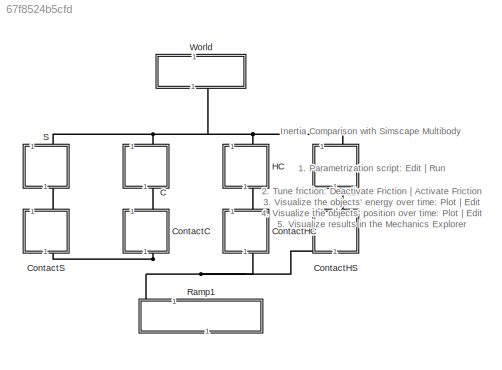
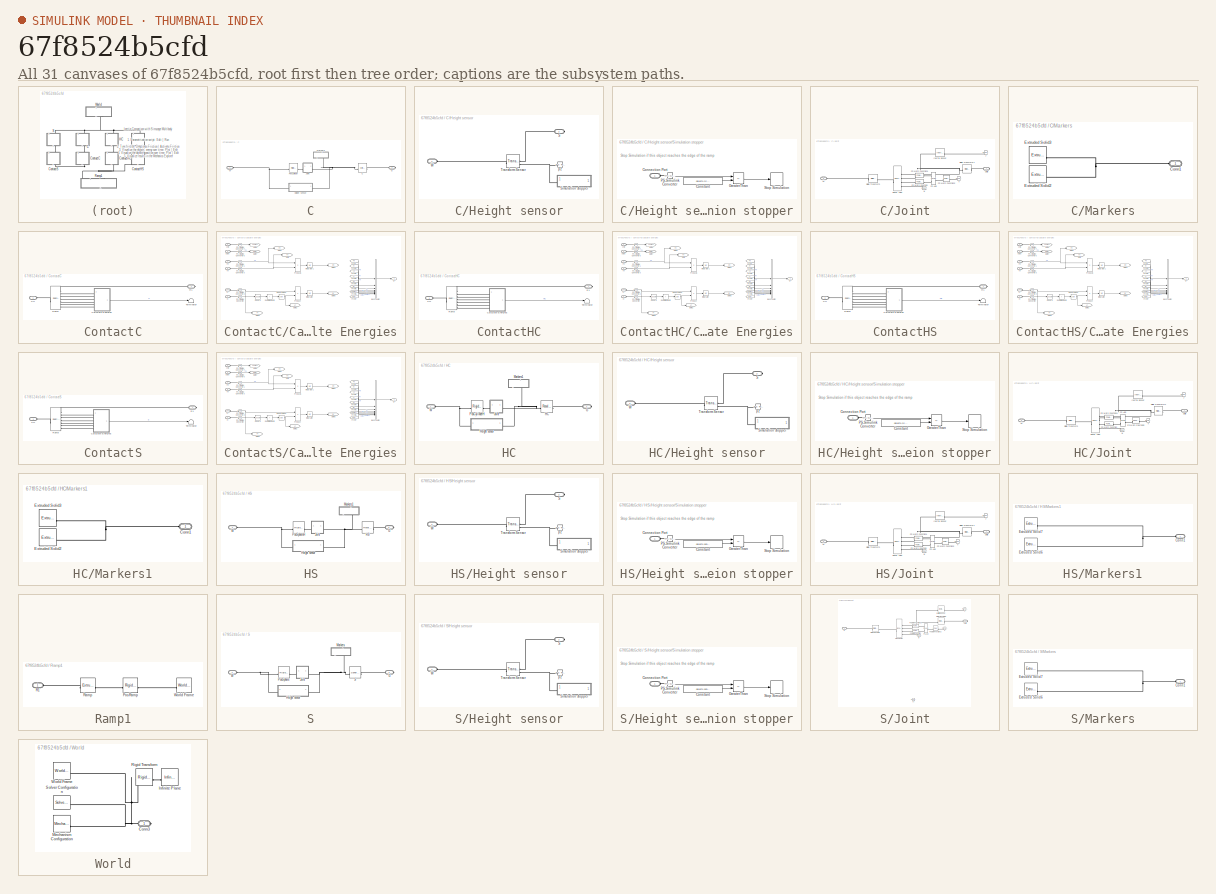
[diagram: thumbnail index - all 31 canvases of the model, root first then tree order]
MODEL slx_67f8524b5cfd
KIND model
CONFIG AbsTol = 1e-3
CONFIG EnableMultiTasking = on
CONFIG FixedStep = 1e-3
CONFIG MaxStep = 0.01
CONFIG MinStep = auto
CONFIG PreLoadFcn = simpleInertiaModelParam
CONFIG RelTol = 1e-3
CONFIG SampleTimeConstraint = Unconstrained
CONFIG SolverName = ode23t
CONFIG StartTime = 0.0
CONFIG StopTime = 10
BLOCK [SubSystem] C
  NameLocation = left
BLOCK [Reference] C/C  REF=sm_lib/Body Elements/Cylindrical Solid
  SourceBlock = sm_lib/Body Elements/Cylindrical Solid
  SourceType = Cylindrical Solid
BLOCK [PMIOPort] C/G
  Port = 2
  Side = Right
BLOCK [SubSystem] C/Height sensor
BLOCK [PMIOPort] C/Height sensor/S
  Port = 2
  Side = Right
BLOCK [SubSystem] C/Height sensor/Simulation stopper
BLOCK [PMIOPort] C/Height sensor/Simulation stopper/Connection Port
  Side = Left
BLOCK [Constant] C/Height sensor/Simulation stopper/Constant
  Value = objects.cylindRad
BLOCK [RelationalOperator] C/Height sensor/Simulation stopper/GreaterThan
  InputSameDT = off
  Operator = <=
  OutDataTypeStr = boolean
  RndMeth = Simplest
BLOCK [Reference] C/Height sensor/Simulation stopper/PS-Simulink Converter  REF=nesl_utility/PS-Simulink
Converter
  SourceBlock = nesl_utility/PS-Simulink\nConverter
  SourceType = PS-Simulink\nConverter
BLOCK [Stop] C/Height sensor/Simulation stopper/Stop Simulation
BLOCK [Reference] C/Height sensor/Transform Sensor  REF=sm_lib/Frames and
Transforms/Transform
Sensor
  SourceBlock = sm_lib/Frames and\nTransforms/Transform\nSensor
  SourceType = Transform\nSensor
BLOCK [PMIOPort] C/Height sensor/W
  Side = Left
BLOCK [Reference] C/Height sensor/pz  REF=fl_lib/Physical Signals/Sinks/PS Terminator
  NameLocation = right
  SourceBlock = fl_lib/Physical Signals/Sinks/PS Terminator
  SourceType = PS Terminator
BLOCK [SubSystem] C/Joint
BLOCK [Reference] C/Joint/Inertia Sensor  REF=sm_lib/Body Elements/Inertia Sensor
  SourceBlock = sm_lib/Body Elements/Inertia Sensor
  SourceType = Inertia Sensor
BLOCK [Reference] C/Joint/J  REF=fl_lib/Physical Signals/Sinks/PS Terminator
  NameLocation = right
  SourceBlock = fl_lib/Physical Signals/Sinks/PS Terminator
  SourceType = PS Terminator
BLOCK [Reference] C/Joint/PS Add  REF=fl_lib/Physical Signals/Functions/PS Add
  SourceBlock = fl_lib/Physical Signals/Functions/PS Add
  SourceType = PS Add
BLOCK [Reference] C/Joint/PS Math Function  REF=fl_lib/Physical Signals/Functions/PS Math Function
  SourceBlock = fl_lib/Physical Signals/Functions/PS Math Function
  SourceType = PS Math Function
BLOCK [Reference] C/Joint/PS Math Function1  REF=fl_lib/Physical Signals/Functions/PS Math Function
  SourceBlock = fl_lib/Physical Signals/Functions/PS Math Function
  SourceType = PS Math Function
BLOCK [Reference] C/Joint/PS Math Function2  REF=fl_lib/Physical Signals/Functions/PS Math Function
  SourceBlock = fl_lib/Physical Signals/Functions/PS Math Function
  SourceType = PS Math Function
BLOCK [Reference] C/Joint/Planar Joint  REF=sm_lib/Joints/Planar Joint
  SourceBlock = sm_lib/Joints/Planar Joint
  SourceType = Planar Joint
BLOCK [Reference] C/Joint/Rigid Transform  REF=sm_lib/Frames and
Transforms/Rigid
Transform
  SourceBlock = sm_lib/Frames and\nTransforms/Rigid\nTransform
  SourceType = Rigid\nTransform
BLOCK [Reference] C/Joint/Rigid Transform1  REF=sm_lib/Frames and
Transforms/Rigid
Transform
  SourceBlock = sm_lib/Frames and\nTransforms/Rigid\nTransform
  SourceType = Rigid\nTransform
BLOCK [PMIOPort] C/Joint/Solid
  Side = Right
BLOCK [PMIOPort] C/Joint/W
  Port = 2
  Side = Left
BLOCK [Reference] C/Joint/v  REF=fl_lib/Physical Signals/Sinks/PS Terminator
  NameLocation = right
  SourceBlock = fl_lib/Physical Signals/Sinks/PS Terminator
  SourceType = PS Terminator
BLOCK [Reference] C/Joint/w  REF=fl_lib/Physical Signals/Sinks/PS Terminator
  NameLocation = right
  SourceBlock = fl_lib/Physical Signals/Sinks/PS Terminator
  SourceType = PS Terminator
BLOCK [SubSystem] C/Markers
  NameLocation = top
BLOCK [PMIOPort] C/Markers/Conn1
  NameLocation = top
  Side = Left
BLOCK [Reference] C/Markers/Extruded Solid2  REF=sm_lib/Body Elements/Extruded Solid
  SourceBlock = sm_lib/Body Elements/Extruded Solid
  SourceType = Extruded Solid
BLOCK [Reference] C/Markers/Extruded Solid3  REF=sm_lib/Body Elements/Extruded Solid
  NameLocation = top
  SourceBlock = sm_lib/Body Elements/Extruded Solid
  SourceType = Extruded Solid
BLOCK [Reference] C/PosCylinder  REF=sm_lib/Frames and
Transforms/Rigid
Transform
  SourceBlock = sm_lib/Frames and\nTransforms/Rigid\nTransform
  SourceType = Rigid\nTransform
BLOCK [PMIOPort] C/W
  Side = Left
BLOCK [SubSystem] ContactC
BLOCK [PMIOPort] ContactC/CH
  Side = Left
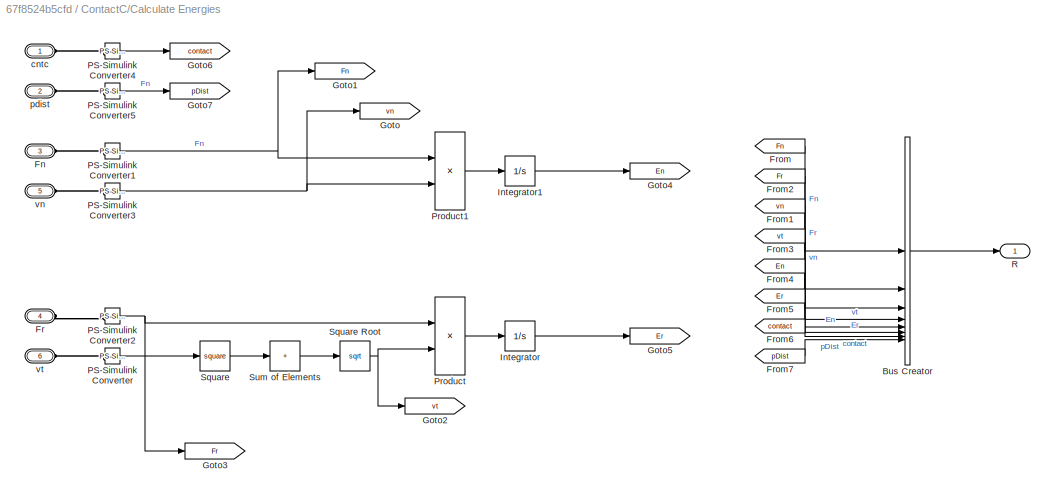
BLOCK [SubSystem] ContactC/Calculate Energies
BLOCK [BusCreator] ContactC/Calculate Energies/Bus Creator
  DisplayOption = bar
  InheritFromInputs = on
  Inputs = 8
BLOCK [PMIOPort] ContactC/Calculate Energies/Fn
  Port = 3
  Side = Left
BLOCK [PMIOPort] ContactC/Calculate Energies/Fr
  Port = 4
  Side = Left
BLOCK [From] ContactC/Calculate Energies/From
  GotoTag = Fn
BLOCK [From] ContactC/Calculate Energies/From1
  GotoTag = vn
BLOCK [From] ContactC/Calculate Energies/From2
  GotoTag = Fr
BLOCK [From] ContactC/Calculate Energies/From3
  GotoTag = vt
BLOCK [From] ContactC/Calculate Energies/From4
  GotoTag = En
BLOCK [From] ContactC/Calculate Energies/From5
  GotoTag = Er
BLOCK [From] ContactC/Calculate Energies/From6
  GotoTag = contact
BLOCK [From] ContactC/Calculate Energies/From7
  GotoTag = pDist
BLOCK [Goto] ContactC/Calculate Energies/Goto
  GotoTag = vn
BLOCK [Goto] ContactC/Calculate Energies/Goto1
  GotoTag = Fn
BLOCK [Goto] ContactC/Calculate Energies/Goto2
  GotoTag = vt
BLOCK [Goto] ContactC/Calculate Energies/Goto3
  GotoTag = Fr
BLOCK [Goto] ContactC/Calculate Energies/Goto4
  GotoTag = En
BLOCK [Goto] ContactC/Calculate Energies/Goto5
  GotoTag = Er
BLOCK [Goto] ContactC/Calculate Energies/Goto6
  GotoTag = contact
BLOCK [Goto] ContactC/Calculate Energies/Goto7
  GotoTag = pDist
BLOCK [Integrator] ContactC/Calculate Energies/Integrator
BLOCK [Integrator] ContactC/Calculate Energies/Integrator1
BLOCK [Reference] ContactC/Calculate Energies/PS-Simulink Converter  REF=nesl_utility/PS-Simulink
Converter
  SourceBlock = nesl_utility/PS-Simulink\nConverter
  SourceType = PS-Simulink\nConverter
BLOCK [Reference] ContactC/Calculate Energies/PS-Simulink Converter1  REF=nesl_utility/PS-Simulink
Converter
  SourceBlock = nesl_utility/PS-Simulink\nConverter
  SourceType = PS-Simulink\nConverter
BLOCK [Reference] ContactC/Calculate Energies/PS-Simulink Converter2  REF=nesl_utility/PS-Simulink
Converter
  SourceBlock = nesl_utility/PS-Simulink\nConverter
  SourceType = PS-Simulink\nConverter
BLOCK [Reference] ContactC/Calculate Energies/PS-Simulink Converter3  REF=nesl_utility/PS-Simulink
Converter
  SourceBlock = nesl_utility/PS-Simulink\nConverter
  SourceType = PS-Simulink\nConverter
BLOCK [Reference] ContactC/Calculate Energies/PS-Simulink Converter4  REF=nesl_utility/PS-Simulink
Converter
  SourceBlock = nesl_utility/PS-Simulink\nConverter
  SourceType = PS-Simulink\nConverter
BLOCK [Reference] ContactC/Calculate Energies/PS-Simulink Converter5  REF=nesl_utility/PS-Simulink
Converter
  SourceBlock = nesl_utility/PS-Simulink\nConverter
  SourceType = PS-Simulink\nConverter
BLOCK [Product] ContactC/Calculate Energies/Product
BLOCK [Product] ContactC/Calculate Energies/Product1
BLOCK [Outport] ContactC/Calculate Energies/R
BLOCK [Math] ContactC/Calculate Energies/Square
  Operator = square
BLOCK [Sqrt] ContactC/Calculate Energies/Square Root
BLOCK [Sum] ContactC/Calculate Energies/Sum of Elements
  IconShape = rectangular
  Inputs = +
BLOCK [PMIOPort] ContactC/Calculate Energies/cntc
  Side = Left
BLOCK [PMIOPort] ContactC/Calculate Energies/pdist
  Port = 2
  Side = Left
BLOCK [PMIOPort] ContactC/Calculate Energies/vn
  Port = 5
  Side = Left
BLOCK [PMIOPort] ContactC/Calculate Energies/vt
  Port = 6
  Side = Left
BLOCK [PMIOPort] ContactC/R1
  NameLocation = top
  Port = 2
  Side = Right
BLOCK [Reference] ContactC/Ramp  REF=sm_lib/Forces and
Torques/Spatial
Contact Force
  SourceBlock = sm_lib/Forces and\nTorques/Spatial\nContact Force
  SourceType = Spatial\nContact Force
BLOCK [Terminator] ContactC/Terminator
BLOCK [SubSystem] ContactHC
BLOCK [PMIOPort] ContactHC/CH
  Side = Left
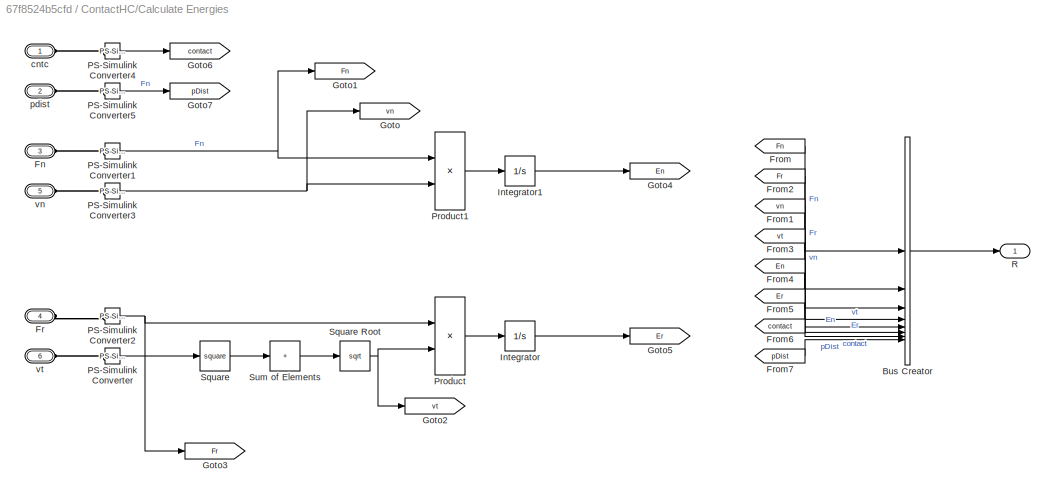
BLOCK [SubSystem] ContactHC/Calculate Energies
BLOCK [BusCreator] ContactHC/Calculate Energies/Bus Creator
  DisplayOption = bar
  InheritFromInputs = on
  Inputs = 8
BLOCK [PMIOPort] ContactHC/Calculate Energies/Fn
  Port = 3
  Side = Left
BLOCK [PMIOPort] ContactHC/Calculate Energies/Fr
  Port = 4
  Side = Left
BLOCK [From] ContactHC/Calculate Energies/From
  GotoTag = Fn
BLOCK [From] ContactHC/Calculate Energies/From1
  GotoTag = vn
BLOCK [From] ContactHC/Calculate Energies/From2
  GotoTag = Fr
BLOCK [From] ContactHC/Calculate Energies/From3
  GotoTag = vt
BLOCK [From] ContactHC/Calculate Energies/From4
  GotoTag = En
BLOCK [From] ContactHC/Calculate Energies/From5
  GotoTag = Er
BLOCK [From] ContactHC/Calculate Energies/From6
  GotoTag = contact
BLOCK [From] ContactHC/Calculate Energies/From7
  GotoTag = pDist
BLOCK [Goto] ContactHC/Calculate Energies/Goto
  GotoTag = vn
BLOCK [Goto] ContactHC/Calculate Energies/Goto1
  GotoTag = Fn
BLOCK [Goto] ContactHC/Calculate Energies/Goto2
  GotoTag = vt
BLOCK [Goto] ContactHC/Calculate Energies/Goto3
  GotoTag = Fr
BLOCK [Goto] ContactHC/Calculate Energies/Goto4
  GotoTag = En
BLOCK [Goto] ContactHC/Calculate Energies/Goto5
  GotoTag = Er
BLOCK [Goto] ContactHC/Calculate Energies/Goto6
  GotoTag = contact
BLOCK [Goto] ContactHC/Calculate Energies/Goto7
  GotoTag = pDist
BLOCK [Integrator] ContactHC/Calculate Energies/Integrator
BLOCK [Integrator] ContactHC/Calculate Energies/Integrator1
BLOCK [Reference] ContactHC/Calculate Energies/PS-Simulink Converter  REF=nesl_utility/PS-Simulink
Converter
  SourceBlock = nesl_utility/PS-Simulink\nConverter
  SourceType = PS-Simulink\nConverter
BLOCK [Reference] ContactHC/Calculate Energies/PS-Simulink Converter1  REF=nesl_utility/PS-Simulink
Converter
  SourceBlock = nesl_utility/PS-Simulink\nConverter
  SourceType = PS-Simulink\nConverter
BLOCK [Reference] ContactHC/Calculate Energies/PS-Simulink Converter2  REF=nesl_utility/PS-Simulink
Converter
  SourceBlock = nesl_utility/PS-Simulink\nConverter
  SourceType = PS-Simulink\nConverter
BLOCK [Reference] ContactHC/Calculate Energies/PS-Simulink Converter3  REF=nesl_utility/PS-Simulink
Converter
  SourceBlock = nesl_utility/PS-Simulink\nConverter
  SourceType = PS-Simulink\nConverter
BLOCK [Reference] ContactHC/Calculate Energies/PS-Simulink Converter4  REF=nesl_utility/PS-Simulink
Converter
  SourceBlock = nesl_utility/PS-Simulink\nConverter
  SourceType = PS-Simulink\nConverter
BLOCK [Reference] ContactHC/Calculate Energies/PS-Simulink Converter5  REF=nesl_utility/PS-Simulink
Converter
  SourceBlock = nesl_utility/PS-Simulink\nConverter
  SourceType = PS-Simulink\nConverter
BLOCK [Product] ContactHC/Calculate Energies/Product
BLOCK [Product] ContactHC/Calculate Energies/Product1
BLOCK [Outport] ContactHC/Calculate Energies/R
BLOCK [Math] ContactHC/Calculate Energies/Square
  Operator = square
BLOCK [Sqrt] ContactHC/Calculate Energies/Square Root
BLOCK [Sum] ContactHC/Calculate Energies/Sum of Elements
  IconShape = rectangular
  Inputs = +
BLOCK [PMIOPort] ContactHC/Calculate Energies/cntc
  Side = Left
BLOCK [PMIOPort] ContactHC/Calculate Energies/pdist
  Port = 2
  Side = Left
BLOCK [PMIOPort] ContactHC/Calculate Energies/vn
  Port = 5
  Side = Left
BLOCK [PMIOPort] ContactHC/Calculate Energies/vt
  Port = 6
  Side = Left
BLOCK [PMIOPort] ContactHC/R1
  NameLocation = top
  Port = 2
  Side = Right
BLOCK [Reference] ContactHC/Ramp  REF=sm_lib/Forces and
Torques/Spatial
Contact Force
  SourceBlock = sm_lib/Forces and\nTorques/Spatial\nContact Force
  SourceType = Spatial\nContact Force
BLOCK [Terminator] ContactHC/Terminator
BLOCK [SubSystem] ContactHS
BLOCK [PMIOPort] ContactHS/CH
  Side = Left
BLOCK [SubSystem] ContactHS/Calculate Energies
BLOCK [BusCreator] ContactHS/Calculate Energies/Bus Creator
  DisplayOption = bar
  InheritFromInputs = on
  Inputs = 8
BLOCK [PMIOPort] ContactHS/Calculate Energies/Fn
  Port = 3
  Side = Left
BLOCK [PMIOPort] ContactHS/Calculate Energies/Fr
  Port = 4
  Side = Left
BLOCK [From] ContactHS/Calculate Energies/From
  GotoTag = Fn
BLOCK [From] ContactHS/Calculate Energies/From1
  GotoTag = vn
BLOCK [From] ContactHS/Calculate Energies/From2
  GotoTag = Fr
BLOCK [From] ContactHS/Calculate Energies/From3
  GotoTag = vt
BLOCK [From] ContactHS/Calculate Energies/From4
  GotoTag = En
BLOCK [From] ContactHS/Calculate Energies/From5
  GotoTag = Er
BLOCK [From] ContactHS/Calculate Energies/From6
  GotoTag = contact
BLOCK [From] ContactHS/Calculate Energies/From7
  GotoTag = pDist
BLOCK [Goto] ContactHS/Calculate Energies/Goto
  GotoTag = vn
BLOCK [Goto] ContactHS/Calculate Energies/Goto1
  GotoTag = Fn
BLOCK [Goto] ContactHS/Calculate Energies/Goto2
  GotoTag = vt
BLOCK [Goto] ContactHS/Calculate Energies/Goto3
  GotoTag = Fr
BLOCK [Goto] ContactHS/Calculate Energies/Goto4
  GotoTag = En
BLOCK [Goto] ContactHS/Calculate Energies/Goto5
  GotoTag = Er
BLOCK [Goto] ContactHS/Calculate Energies/Goto6
  GotoTag = contact
BLOCK [Goto] ContactHS/Calculate Energies/Goto7
  GotoTag = pDist
BLOCK [Integrator] ContactHS/Calculate Energies/Integrator
BLOCK [Integrator] ContactHS/Calculate Energies/Integrator1
BLOCK [Reference] ContactHS/Calculate Energies/PS-Simulink Converter  REF=nesl_utility/PS-Simulink
Converter
  SourceBlock = nesl_utility/PS-Simulink\nConverter
  SourceType = PS-Simulink\nConverter
BLOCK [Reference] ContactHS/Calculate Energies/PS-Simulink Converter1  REF=nesl_utility/PS-Simulink
Converter
  SourceBlock = nesl_utility/PS-Simulink\nConverter
  SourceType = PS-Simulink\nConverter
BLOCK [Reference] ContactHS/Calculate Energies/PS-Simulink Converter2  REF=nesl_utility/PS-Simulink
Converter
  SourceBlock = nesl_utility/PS-Simulink\nConverter
  SourceType = PS-Simulink\nConverter
BLOCK [Reference] ContactHS/Calculate Energies/PS-Simulink Converter3  REF=nesl_utility/PS-Simulink
Converter
  SourceBlock = nesl_utility/PS-Simulink\nConverter
  SourceType = PS-Simulink\nConverter
BLOCK [Reference] ContactHS/Calculate Energies/PS-Simulink Converter4  REF=nesl_utility/PS-Simulink
Converter
  SourceBlock = nesl_utility/PS-Simulink\nConverter
  SourceType = PS-Simulink\nConverter
BLOCK [Reference] ContactHS/Calculate Energies/PS-Simulink Converter5  REF=nesl_utility/PS-Simulink
Converter
  SourceBlock = nesl_utility/PS-Simulink\nConverter
  SourceType = PS-Simulink\nConverter
BLOCK [Product] ContactHS/Calculate Energies/Product
BLOCK [Product] ContactHS/Calculate Energies/Product1
BLOCK [Outport] ContactHS/Calculate Energies/R
BLOCK [Math] ContactHS/Calculate Energies/Square
  Operator = square
BLOCK [Sqrt] ContactHS/Calculate Energies/Square Root
BLOCK [Sum] ContactHS/Calculate Energies/Sum of Elements
  IconShape = rectangular
  Inputs = +
BLOCK [PMIOPort] ContactHS/Calculate Energies/cntc
  Side = Left
BLOCK [PMIOPort] ContactHS/Calculate Energies/pdist
  Port = 2
  Side = Left
BLOCK [PMIOPort] ContactHS/Calculate Energies/vn
  Port = 5
  Side = Left
BLOCK [PMIOPort] ContactHS/Calculate Energies/vt
  Port = 6
  Side = Left
BLOCK [PMIOPort] ContactHS/R1
  NameLocation = top
  Port = 2
  Side = Right
BLOCK [Reference] ContactHS/Ramp  REF=sm_lib/Forces and
Torques/Spatial
Contact Force
  SourceBlock = sm_lib/Forces and\nTorques/Spatial\nContact Force
  SourceType = Spatial\nContact Force
BLOCK [Terminator] ContactHS/Terminator
BLOCK [SubSystem] ContactS
BLOCK [PMIOPort] ContactS/CH
  Side = Left
BLOCK [SubSystem] ContactS/Calculate Energies
BLOCK [BusCreator] ContactS/Calculate Energies/Bus Creator
  DisplayOption = bar
  InheritFromInputs = on
  Inputs = 8
BLOCK [PMIOPort] ContactS/Calculate Energies/Fn
  Port = 3
  Side = Left
BLOCK [PMIOPort] ContactS/Calculate Energies/Fr
  Port = 4
  Side = Left
BLOCK [From] ContactS/Calculate Energies/From
  GotoTag = Fn
BLOCK [From] ContactS/Calculate Energies/From1
  GotoTag = vn
BLOCK [From] ContactS/Calculate Energies/From2
  GotoTag = Fr
BLOCK [From] ContactS/Calculate Energies/From3
  GotoTag = vt
BLOCK [From] ContactS/Calculate Energies/From4
  GotoTag = En
BLOCK [From] ContactS/Calculate Energies/From5
  GotoTag = Er
BLOCK [From] ContactS/Calculate Energies/From6
  GotoTag = contact
BLOCK [From] ContactS/Calculate Energies/From7
  GotoTag = pDist
BLOCK [Goto] ContactS/Calculate Energies/Goto
  GotoTag = vn
BLOCK [Goto] ContactS/Calculate Energies/Goto1
  GotoTag = Fn
BLOCK [Goto] ContactS/Calculate Energies/Goto2
  GotoTag = vt
BLOCK [Goto] ContactS/Calculate Energies/Goto3
  GotoTag = Fr
BLOCK [Goto] ContactS/Calculate Energies/Goto4
  GotoTag = En
BLOCK [Goto] ContactS/Calculate Energies/Goto5
  GotoTag = Er
BLOCK [Goto] ContactS/Calculate Energies/Goto6
  GotoTag = contact
BLOCK [Goto] ContactS/Calculate Energies/Goto7
  GotoTag = pDist
BLOCK [Integrator] ContactS/Calculate Energies/Integrator
BLOCK [Integrator] ContactS/Calculate Energies/Integrator1
BLOCK [Reference] ContactS/Calculate Energies/PS-Simulink Converter  REF=nesl_utility/PS-Simulink
Converter
  SourceBlock = nesl_utility/PS-Simulink\nConverter
  SourceType = PS-Simulink\nConverter
BLOCK [Reference] ContactS/Calculate Energies/PS-Simulink Converter1  REF=nesl_utility/PS-Simulink
Converter
  SourceBlock = nesl_utility/PS-Simulink\nConverter
  SourceType = PS-Simulink\nConverter
BLOCK [Reference] ContactS/Calculate Energies/PS-Simulink Converter2  REF=nesl_utility/PS-Simulink
Converter
  SourceBlock = nesl_utility/PS-Simulink\nConverter
  SourceType = PS-Simulink\nConverter
BLOCK [Reference] ContactS/Calculate Energies/PS-Simulink Converter3  REF=nesl_utility/PS-Simulink
Converter
  SourceBlock = nesl_utility/PS-Simulink\nConverter
  SourceType = PS-Simulink\nConverter
BLOCK [Reference] ContactS/Calculate Energies/PS-Simulink Converter4  REF=nesl_utility/PS-Simulink
Converter
  SourceBlock = nesl_utility/PS-Simulink\nConverter
  SourceType = PS-Simulink\nConverter
BLOCK [Reference] ContactS/Calculate Energies/PS-Simulink Converter5  REF=nesl_utility/PS-Simulink
Converter
  SourceBlock = nesl_utility/PS-Simulink\nConverter
  SourceType = PS-Simulink\nConverter
BLOCK [Product] ContactS/Calculate Energies/Product
BLOCK [Product] ContactS/Calculate Energies/Product1
BLOCK [Outport] ContactS/Calculate Energies/R
BLOCK [Math] ContactS/Calculate Energies/Square
  Operator = square
BLOCK [Sqrt] ContactS/Calculate Energies/Square Root
BLOCK [Sum] ContactS/Calculate Energies/Sum of Elements
  IconShape = rectangular
  Inputs = +
BLOCK [PMIOPort] ContactS/Calculate Energies/cntc
  Side = Left
BLOCK [PMIOPort] ContactS/Calculate Energies/pdist
  Port = 2
  Side = Left
BLOCK [PMIOPort] ContactS/Calculate Energies/vn
  Port = 5
  Side = Left
BLOCK [PMIOPort] ContactS/Calculate Energies/vt
  Port = 6
  Side = Left
BLOCK [PMIOPort] ContactS/R1
  NameLocation = top
  Port = 2
  Side = Right
BLOCK [Reference] ContactS/Ramp  REF=sm_lib/Forces and
Torques/Spatial
Contact Force
  SourceBlock = sm_lib/Forces and\nTorques/Spatial\nContact Force
  SourceType = Spatial\nContact Force
BLOCK [Terminator] ContactS/Terminator
BLOCK [SubSystem] HC
  NameLocation = left
BLOCK [PMIOPort] HC/G
  Port = 2
  Side = Right
BLOCK [Reference] HC/HC  REF=sm_lib/Body Elements/Revolved Solid
  SourceBlock = sm_lib/Body Elements/Revolved Solid
  SourceType = Revolved Solid
BLOCK [SubSystem] HC/Height sensor
BLOCK [PMIOPort] HC/Height sensor/S
  Port = 2
  Side = Right
BLOCK [SubSystem] HC/Height sensor/Simulation stopper
BLOCK [PMIOPort] HC/Height sensor/Simulation stopper/Connection Port
  Side = Left
BLOCK [Constant] HC/Height sensor/Simulation stopper/Constant
  Value = objects.cylindRad
BLOCK [RelationalOperator] HC/Height sensor/Simulation stopper/GreaterThan
  InputSameDT = off
  Operator = <=
  OutDataTypeStr = boolean
  RndMeth = Simplest
BLOCK [Reference] HC/Height sensor/Simulation stopper/PS-Simulink Converter  REF=nesl_utility/PS-Simulink
Converter
  SourceBlock = nesl_utility/PS-Simulink\nConverter
  SourceType = PS-Simulink\nConverter
BLOCK [Stop] HC/Height sensor/Simulation stopper/Stop Simulation
BLOCK [Reference] HC/Height sensor/Transform Sensor  REF=sm_lib/Frames and
Transforms/Transform
Sensor
  SourceBlock = sm_lib/Frames and\nTransforms/Transform\nSensor
  SourceType = Transform\nSensor
BLOCK [PMIOPort] HC/Height sensor/W
  Side = Left
BLOCK [Reference] HC/Height sensor/pz  REF=fl_lib/Physical Signals/Sinks/PS Terminator
  NameLocation = right
  SourceBlock = fl_lib/Physical Signals/Sinks/PS Terminator
  SourceType = PS Terminator
BLOCK [SubSystem] HC/Joint
BLOCK [Reference] HC/Joint/Inertia Sensor  REF=sm_lib/Body Elements/Inertia Sensor
  SourceBlock = sm_lib/Body Elements/Inertia Sensor
  SourceType = Inertia Sensor
BLOCK [Reference] HC/Joint/J  REF=fl_lib/Physical Signals/Sinks/PS Terminator
  NameLocation = right
  SourceBlock = fl_lib/Physical Signals/Sinks/PS Terminator
  SourceType = PS Terminator
BLOCK [Reference] HC/Joint/PS Add  REF=fl_lib/Physical Signals/Functions/PS Add
  SourceBlock = fl_lib/Physical Signals/Functions/PS Add
  SourceType = PS Add
BLOCK [Reference] HC/Joint/PS Math Function  REF=fl_lib/Physical Signals/Functions/PS Math Function
  SourceBlock = fl_lib/Physical Signals/Functions/PS Math Function
  SourceType = PS Math Function
BLOCK [Reference] HC/Joint/PS Math Function1  REF=fl_lib/Physical Signals/Functions/PS Math Function
  SourceBlock = fl_lib/Physical Signals/Functions/PS Math Function
  SourceType = PS Math Function
BLOCK [Reference] HC/Joint/PS Math Function2  REF=fl_lib/Physical Signals/Functions/PS Math Function
  SourceBlock = fl_lib/Physical Signals/Functions/PS Math Function
  SourceType = PS Math Function
BLOCK [Reference] HC/Joint/Planar Joint  REF=sm_lib/Joints/Planar Joint
  SourceBlock = sm_lib/Joints/Planar Joint
  SourceType = Planar Joint
BLOCK [Reference] HC/Joint/Rigid Transform  REF=sm_lib/Frames and
Transforms/Rigid
Transform
  SourceBlock = sm_lib/Frames and\nTransforms/Rigid\nTransform
  SourceType = Rigid\nTransform
BLOCK [Reference] HC/Joint/Rigid Transform1  REF=sm_lib/Frames and
Transforms/Rigid
Transform
  SourceBlock = sm_lib/Frames and\nTransforms/Rigid\nTransform
  SourceType = Rigid\nTransform
BLOCK [PMIOPort] HC/Joint/Solid
  Side = Right
BLOCK [PMIOPort] HC/Joint/W
  Port = 2
  Side = Left
BLOCK [Reference] HC/Joint/v  REF=fl_lib/Physical Signals/Sinks/PS Terminator
  NameLocation = right
  SourceBlock = fl_lib/Physical Signals/Sinks/PS Terminator
  SourceType = PS Terminator
BLOCK [Reference] HC/Joint/w  REF=fl_lib/Physical Signals/Sinks/PS Terminator
  NameLocation = right
  SourceBlock = fl_lib/Physical Signals/Sinks/PS Terminator
  SourceType = PS Terminator
BLOCK [SubSystem] HC/Markers1
  NameLocation = top
BLOCK [PMIOPort] HC/Markers1/Conn1
  NameLocation = top
  Side = Left
BLOCK [Reference] HC/Markers1/Extruded Solid2  REF=sm_lib/Body Elements/Extruded Solid
  SourceBlock = sm_lib/Body Elements/Extruded Solid
  SourceType = Extruded Solid
BLOCK [Reference] HC/Markers1/Extruded Solid3  REF=sm_lib/Body Elements/Extruded Solid
  NameLocation = top
  SourceBlock = sm_lib/Body Elements/Extruded Solid
  SourceType = Extruded Solid
BLOCK [Reference] HC/PosCylinderH  REF=sm_lib/Frames and
Transforms/Rigid
Transform
  SourceBlock = sm_lib/Frames and\nTransforms/Rigid\nTransform
  SourceType = Rigid\nTransform
BLOCK [PMIOPort] HC/W
  Side = Left
BLOCK [SubSystem] HS
  NameLocation = left
BLOCK [PMIOPort] HS/G
  Port = 2
  Side = Right
BLOCK [Reference] HS/HS  REF=sm_lib/Body Elements/Revolved Solid
  SourceBlock = sm_lib/Body Elements/Revolved Solid
  SourceType = Revolved Solid
BLOCK [SubSystem] HS/Height sensor
BLOCK [PMIOPort] HS/Height sensor/S
  Port = 2
  Side = Right
BLOCK [SubSystem] HS/Height sensor/Simulation stopper
BLOCK [PMIOPort] HS/Height sensor/Simulation stopper/Connection Port
  Side = Left
BLOCK [Constant] HS/Height sensor/Simulation stopper/Constant
  Value = objects.sphereRad
BLOCK [RelationalOperator] HS/Height sensor/Simulation stopper/GreaterThan
  InputSameDT = off
  Operator = <=
  OutDataTypeStr = boolean
  RndMeth = Simplest
BLOCK [Reference] HS/Height sensor/Simulation stopper/PS-Simulink Converter  REF=nesl_utility/PS-Simulink
Converter
  SourceBlock = nesl_utility/PS-Simulink\nConverter
  SourceType = PS-Simulink\nConverter
BLOCK [Stop] HS/Height sensor/Simulation stopper/Stop Simulation
BLOCK [Reference] HS/Height sensor/Transform Sensor  REF=sm_lib/Frames and
Transforms/Transform
Sensor
  SourceBlock = sm_lib/Frames and\nTransforms/Transform\nSensor
  SourceType = Transform\nSensor
BLOCK [PMIOPort] HS/Height sensor/W
  Side = Left
BLOCK [Reference] HS/Height sensor/pz  REF=fl_lib/Physical Signals/Sinks/PS Terminator
  NameLocation = right
  SourceBlock = fl_lib/Physical Signals/Sinks/PS Terminator
  SourceType = PS Terminator
BLOCK [SubSystem] HS/Joint
BLOCK [Reference] HS/Joint/Inertia Sensor  REF=sm_lib/Body Elements/Inertia Sensor
  SourceBlock = sm_lib/Body Elements/Inertia Sensor
  SourceType = Inertia Sensor
BLOCK [Reference] HS/Joint/J  REF=fl_lib/Physical Signals/Sinks/PS Terminator
  NameLocation = right
  SourceBlock = fl_lib/Physical Signals/Sinks/PS Terminator
  SourceType = PS Terminator
BLOCK [Reference] HS/Joint/PS Add  REF=fl_lib/Physical Signals/Functions/PS Add
  SourceBlock = fl_lib/Physical Signals/Functions/PS Add
  SourceType = PS Add
BLOCK [Reference] HS/Joint/PS Math Function  REF=fl_lib/Physical Signals/Functions/PS Math Function
  SourceBlock = fl_lib/Physical Signals/Functions/PS Math Function
  SourceType = PS Math Function
BLOCK [Reference] HS/Joint/PS Math Function1  REF=fl_lib/Physical Signals/Functions/PS Math Function
  SourceBlock = fl_lib/Physical Signals/Functions/PS Math Function
  SourceType = PS Math Function
BLOCK [Reference] HS/Joint/PS Math Function2  REF=fl_lib/Physical Signals/Functions/PS Math Function
  SourceBlock = fl_lib/Physical Signals/Functions/PS Math Function
  SourceType = PS Math Function
BLOCK [Reference] HS/Joint/Planar Joint  REF=sm_lib/Joints/Planar Joint
  SourceBlock = sm_lib/Joints/Planar Joint
  SourceType = Planar Joint
BLOCK [Reference] HS/Joint/Rigid Transform  REF=sm_lib/Frames and
Transforms/Rigid
Transform
  SourceBlock = sm_lib/Frames and\nTransforms/Rigid\nTransform
  SourceType = Rigid\nTransform
BLOCK [Reference] HS/Joint/Rigid Transform1  REF=sm_lib/Frames and
Transforms/Rigid
Transform
  SourceBlock = sm_lib/Frames and\nTransforms/Rigid\nTransform
  SourceType = Rigid\nTransform
BLOCK [PMIOPort] HS/Joint/Solid
  Side = Right
BLOCK [PMIOPort] HS/Joint/W
  Port = 2
  Side = Left
BLOCK [Reference] HS/Joint/v  REF=fl_lib/Physical Signals/Sinks/PS Terminator
  NameLocation = right
  SourceBlock = fl_lib/Physical Signals/Sinks/PS Terminator
  SourceType = PS Terminator
BLOCK [Reference] HS/Joint/w  REF=fl_lib/Physical Signals/Sinks/PS Terminator
  NameLocation = right
  SourceBlock = fl_lib/Physical Signals/Sinks/PS Terminator
  SourceType = PS Terminator
BLOCK [SubSystem] HS/Markers1
  NameLocation = top
BLOCK [PMIOPort] HS/Markers1/Conn1
  NameLocation = top
  Side = Left
BLOCK [Reference] HS/Markers1/Extruded Solid6  REF=sm_lib/Body Elements/Extruded Solid
  SourceBlock = sm_lib/Body Elements/Extruded Solid
  SourceType = Extruded Solid
BLOCK [Reference] HS/Markers1/Extruded Solid7  REF=sm_lib/Body Elements/Extruded Solid
  SourceBlock = sm_lib/Body Elements/Extruded Solid
  SourceType = Extruded Solid
BLOCK [Reference] HS/PosSphereH  REF=sm_lib/Frames and
Transforms/Rigid
Transform
  SourceBlock = sm_lib/Frames and\nTransforms/Rigid\nTransform
  SourceType = Rigid\nTransform
BLOCK [PMIOPort] HS/W
  Side = Left
BLOCK [SubSystem] Ramp1
BLOCK [Reference] Ramp1/PosRamp  REF=sm_lib/Frames and
Transforms/Rigid
Transform
  SourceBlock = sm_lib/Frames and\nTransforms/Rigid\nTransform
  SourceType = Rigid\nTransform
BLOCK [PMIOPort] Ramp1/R1
  Side = Left
BLOCK [Reference] Ramp1/Ramp  REF=sm_lib/Body Elements/Extruded Solid
  SourceBlock = sm_lib/Body Elements/Extruded Solid
  SourceType = Extruded Solid
BLOCK [Reference] Ramp1/World Frame  REF=sm_lib/Frames and
Transforms/World Frame
  SourceBlock = sm_lib/Frames and\nTransforms/World Frame
  SourceType = World Frame
BLOCK [SubSystem] S
  NameLocation = left
BLOCK [PMIOPort] S/G
  Port = 2
  Side = Right
BLOCK [SubSystem] S/Height sensor
BLOCK [PMIOPort] S/Height sensor/S
  Port = 2
  Side = Right
BLOCK [SubSystem] S/Height sensor/Simulation stopper
BLOCK [PMIOPort] S/Height sensor/Simulation stopper/Connection Port
  Side = Left
BLOCK [Constant] S/Height sensor/Simulation stopper/Constant
  Value = objects.sphereRad
BLOCK [RelationalOperator] S/Height sensor/Simulation stopper/GreaterThan
  InputSameDT = off
  Operator = <=
  OutDataTypeStr = boolean
  RndMeth = Simplest
BLOCK [Reference] S/Height sensor/Simulation stopper/PS-Simulink Converter  REF=nesl_utility/PS-Simulink
Converter
  SourceBlock = nesl_utility/PS-Simulink\nConverter
  SourceType = PS-Simulink\nConverter
BLOCK [Stop] S/Height sensor/Simulation stopper/Stop Simulation
BLOCK [Reference] S/Height sensor/Transform Sensor  REF=sm_lib/Frames and
Transforms/Transform
Sensor
  SourceBlock = sm_lib/Frames and\nTransforms/Transform\nSensor
  SourceType = Transform\nSensor
BLOCK [PMIOPort] S/Height sensor/W
  Side = Left
BLOCK [Reference] S/Height sensor/pz  REF=fl_lib/Physical Signals/Sinks/PS Terminator
  NameLocation = right
  SourceBlock = fl_lib/Physical Signals/Sinks/PS Terminator
  SourceType = PS Terminator
BLOCK [SubSystem] S/Joint
BLOCK [Reference] S/Joint/Inertia Sensor  REF=sm_lib/Body Elements/Inertia Sensor
  SourceBlock = sm_lib/Body Elements/Inertia Sensor
  SourceType = Inertia Sensor
BLOCK [Reference] S/Joint/J  REF=fl_lib/Physical Signals/Sinks/PS Terminator
  NameLocation = right
  SourceBlock = fl_lib/Physical Signals/Sinks/PS Terminator
  SourceType = PS Terminator
BLOCK [Reference] S/Joint/PS Add  REF=fl_lib/Physical Signals/Functions/PS Add
  SourceBlock = fl_lib/Physical Signals/Functions/PS Add
  SourceType = PS Add
BLOCK [Reference] S/Joint/PS Math Function  REF=fl_lib/Physical Signals/Functions/PS Math Function
  SourceBlock = fl_lib/Physical Signals/Functions/PS Math Function
  SourceType = PS Math Function
BLOCK [Reference] S/Joint/PS Math Function1  REF=fl_lib/Physical Signals/Functions/PS Math Function
  SourceBlock = fl_lib/Physical Signals/Functions/PS Math Function
  SourceType = PS Math Function
BLOCK [Reference] S/Joint/PS Math Function2  REF=fl_lib/Physical Signals/Functions/PS Math Function
  SourceBlock = fl_lib/Physical Signals/Functions/PS Math Function
  SourceType = PS Math Function
BLOCK [Reference] S/Joint/Planar Joint  REF=sm_lib/Joints/Planar Joint
  SourceBlock = sm_lib/Joints/Planar Joint
  SourceType = Planar Joint
BLOCK [Reference] S/Joint/Rigid Transform  REF=sm_lib/Frames and
Transforms/Rigid
Transform
  SourceBlock = sm_lib/Frames and\nTransforms/Rigid\nTransform
  SourceType = Rigid\nTransform
BLOCK [Reference] S/Joint/Rigid Transform1  REF=sm_lib/Frames and
Transforms/Rigid
Transform
  SourceBlock = sm_lib/Frames and\nTransforms/Rigid\nTransform
  SourceType = Rigid\nTransform
BLOCK [PMIOPort] S/Joint/Solid
  Side = Right
BLOCK [PMIOPort] S/Joint/W
  Port = 2
  Side = Left
BLOCK [Reference] S/Joint/v  REF=fl_lib/Physical Signals/Sinks/PS Terminator
  NameLocation = right
  SourceBlock = fl_lib/Physical Signals/Sinks/PS Terminator
  SourceType = PS Terminator
BLOCK [Reference] S/Joint/vy  REF=fl_lib/Physical Signals/Sinks/PS Terminator
  NameLocation = right
  SourceBlock = fl_lib/Physical Signals/Sinks/PS Terminator
  SourceType = PS Terminator
BLOCK [Reference] S/Joint/w  REF=fl_lib/Physical Signals/Sinks/PS Terminator
  NameLocation = right
  SourceBlock = fl_lib/Physical Signals/Sinks/PS Terminator
  SourceType = PS Terminator
BLOCK [SubSystem] S/Markers
  NameLocation = top
BLOCK [PMIOPort] S/Markers/Conn1
  NameLocation = top
  Side = Left
BLOCK [Reference] S/Markers/Extruded Solid6  REF=sm_lib/Body Elements/Extruded Solid
  SourceBlock = sm_lib/Body Elements/Extruded Solid
  SourceType = Extruded Solid
BLOCK [Reference] S/Markers/Extruded Solid7  REF=sm_lib/Body Elements/Extruded Solid
  SourceBlock = sm_lib/Body Elements/Extruded Solid
  SourceType = Extruded Solid
BLOCK [Reference] S/PosSphere  REF=sm_lib/Frames and
Transforms/Rigid
Transform
  SourceBlock = sm_lib/Frames and\nTransforms/Rigid\nTransform
  SourceType = Rigid\nTransform
BLOCK [Reference] S/S  REF=sm_lib/Body Elements/Spherical Solid
  SourceBlock = sm_lib/Body Elements/Spherical Solid
  SourceType = Spherical Solid
BLOCK [PMIOPort] S/W
  Side = Left
BLOCK [SubSystem] World
  NameLocation = left
BLOCK [PMIOPort] World/Conn3
  Side = Right
BLOCK [Reference] World/Infinite Plane  REF=sm_lib/Curves and Surfaces/Infinite Plane
  SourceBlock = sm_lib/Curves and Surfaces/Infinite Plane
  SourceType = Infinite Plane
BLOCK [Reference] World/Mechanism Configuration  REF=sm_lib/Utilities/Mechanism
Configuration
  SourceBlock = sm_lib/Utilities/Mechanism\nConfiguration
  SourceType = Mechanism\nConfiguration
BLOCK [Reference] World/Rigid Transform  REF=sm_lib/Frames and
Transforms/Rigid
Transform
  SourceBlock = sm_lib/Frames and\nTransforms/Rigid\nTransform
  SourceType = Rigid\nTransform
BLOCK [Reference] World/Solver Configuration  REF=nesl_utility/Solver
Configuration
  SourceBlock = nesl_utility/Solver\nConfiguration
  SourceType = Solver\nConfiguration
BLOCK [Reference] World/World Frame  REF=sm_lib/Frames and
Transforms/World Frame
  SourceBlock = sm_lib/Frames and\nTransforms/World Frame
  SourceType = World Frame
ANNOTATION (root): 1. Parametrization script: Edit | Run 2. Tune friction: Deactivate Friction | Activate Friction 3. Visualize the objects' energy over time: Plot | Edit 4. Visualize the objects' position over time: Plot | Edit 5. Visualize results in the Mechanics Explorer
ANNOTATION (root): Inertia Comparison with Simscape Multibody
ANNOTATION C/Height sensor/Simulation stopper: Stop Simulation if this object reaches the edge of the ramp
ANNOTATION HC/Height sensor/Simulation stopper: Stop Simulation if this object reaches the edge of the ramp
ANNOTATION HS/Height sensor/Simulation stopper: Stop Simulation if this object reaches the edge of the ramp
ANNOTATION S/Height sensor/Simulation stopper: Stop Simulation if this object reaches the edge of the ramp
LINE C/Height sensor/Simulation stopper/Constant:1 -> C/Height sensor/Simulation stopper/GreaterThan:2
LINE C/Height sensor/Simulation stopper/GreaterThan:1 -> C/Height sensor/Simulation stopper/Stop Simulation:1
LINE C/Height sensor/Simulation stopper/PS-Simulink Converter:1 -> C/Height sensor/Simulation stopper/GreaterThan:1
LINE ContactC/Calculate Energies/Bus Creator:1 -> ContactC/Calculate Energies/R:1
LINE ContactC/Calculate Energies/From1:1 -> ContactC/Calculate Energies/Bus Creator:3
LINE ContactC/Calculate Energies/From2:1 -> ContactC/Calculate Energies/Bus Creator:2
LINE ContactC/Calculate Energies/From3:1 -> ContactC/Calculate Energies/Bus Creator:4
LINE ContactC/Calculate Energies/From4:1 -> ContactC/Calculate Energies/Bus Creator:5
LINE ContactC/Calculate Energies/From5:1 -> ContactC/Calculate Energies/Bus Creator:6
LINE ContactC/Calculate Energies/From6:1 -> ContactC/Calculate Energies/Bus Creator:7
LINE ContactC/Calculate Energies/From7:1 -> ContactC/Calculate Energies/Bus Creator:8
LINE ContactC/Calculate Energies/From:1 -> ContactC/Calculate Energies/Bus Creator:1
LINE ContactC/Calculate Energies/Integrator1:1 -> ContactC/Calculate Energies/Goto4:1
LINE ContactC/Calculate Energies/Integrator:1 -> ContactC/Calculate Energies/Goto5:1
NET ContactC/Calculate Energies/PS-Simulink Converter1:1 -> ContactC/Calculate Energies/Goto1:1, ContactC/Calculate Energies/Product1:1
NET ContactC/Calculate Energies/PS-Simulink Converter2:1 -> ContactC/Calculate Energies/Goto3:1, ContactC/Calculate Energies/Product:1
NET ContactC/Calculate Energies/PS-Simulink Converter3:1 -> ContactC/Calculate Energies/Goto:1, ContactC/Calculate Energies/Product1:2
LINE ContactC/Calculate Energies/PS-Simulink Converter4:1 -> ContactC/Calculate Energies/Goto6:1
LINE ContactC/Calculate Energies/PS-Simulink Converter5:1 -> ContactC/Calculate Energies/Goto7:1
LINE ContactC/Calculate Energies/PS-Simulink Converter:1 -> ContactC/Calculate Energies/Square:1
LINE ContactC/Calculate Energies/Product1:1 -> ContactC/Calculate Energies/Integrator1:1
LINE ContactC/Calculate Energies/Product:1 -> ContactC/Calculate Energies/Integrator:1
NET ContactC/Calculate Energies/Square Root:1 -> ContactC/Calculate Energies/Goto2:1, ContactC/Calculate Energies/Product:2
LINE ContactC/Calculate Energies/Square:1 -> ContactC/Calculate Energies/Sum of Elements:1
LINE ContactC/Calculate Energies/Sum of Elements:1 -> ContactC/Calculate Energies/Square Root:1
LINE ContactC/Calculate Energies:1 -> ContactC/Terminator:1
LINE ContactHC/Calculate Energies/Bus Creator:1 -> ContactHC/Calculate Energies/R:1
LINE ContactHC/Calculate Energies/From1:1 -> ContactHC/Calculate Energies/Bus Creator:3
LINE ContactHC/Calculate Energies/From2:1 -> ContactHC/Calculate Energies/Bus Creator:2
LINE ContactHC/Calculate Energies/From3:1 -> ContactHC/Calculate Energies/Bus Creator:4
LINE ContactHC/Calculate Energies/From4:1 -> ContactHC/Calculate Energies/Bus Creator:5
LINE ContactHC/Calculate Energies/From5:1 -> ContactHC/Calculate Energies/Bus Creator:6
LINE ContactHC/Calculate Energies/From6:1 -> ContactHC/Calculate Energies/Bus Creator:7
LINE ContactHC/Calculate Energies/From7:1 -> ContactHC/Calculate Energies/Bus Creator:8
LINE ContactHC/Calculate Energies/From:1 -> ContactHC/Calculate Energies/Bus Creator:1
LINE ContactHC/Calculate Energies/Integrator1:1 -> ContactHC/Calculate Energies/Goto4:1
LINE ContactHC/Calculate Energies/Integrator:1 -> ContactHC/Calculate Energies/Goto5:1
NET ContactHC/Calculate Energies/PS-Simulink Converter1:1 -> ContactHC/Calculate Energies/Goto1:1, ContactHC/Calculate Energies/Product1:1
NET ContactHC/Calculate Energies/PS-Simulink Converter2:1 -> ContactHC/Calculate Energies/Goto3:1, ContactHC/Calculate Energies/Product:1
NET ContactHC/Calculate Energies/PS-Simulink Converter3:1 -> ContactHC/Calculate Energies/Goto:1, ContactHC/Calculate Energies/Product1:2
LINE ContactHC/Calculate Energies/PS-Simulink Converter4:1 -> ContactHC/Calculate Energies/Goto6:1
LINE ContactHC/Calculate Energies/PS-Simulink Converter5:1 -> ContactHC/Calculate Energies/Goto7:1
LINE ContactHC/Calculate Energies/PS-Simulink Converter:1 -> ContactHC/Calculate Energies/Square:1
LINE ContactHC/Calculate Energies/Product1:1 -> ContactHC/Calculate Energies/Integrator1:1
LINE ContactHC/Calculate Energies/Product:1 -> ContactHC/Calculate Energies/Integrator:1
NET ContactHC/Calculate Energies/Square Root:1 -> ContactHC/Calculate Energies/Goto2:1, ContactHC/Calculate Energies/Product:2
LINE ContactHC/Calculate Energies/Square:1 -> ContactHC/Calculate Energies/Sum of Elements:1
LINE ContactHC/Calculate Energies/Sum of Elements:1 -> ContactHC/Calculate Energies/Square Root:1
LINE ContactHC/Calculate Energies:1 -> ContactHC/Terminator:1
LINE ContactHS/Calculate Energies/Bus Creator:1 -> ContactHS/Calculate Energies/R:1
LINE ContactHS/Calculate Energies/From1:1 -> ContactHS/Calculate Energies/Bus Creator:3
LINE ContactHS/Calculate Energies/From2:1 -> ContactHS/Calculate Energies/Bus Creator:2
LINE ContactHS/Calculate Energies/From3:1 -> ContactHS/Calculate Energies/Bus Creator:4
LINE ContactHS/Calculate Energies/From4:1 -> ContactHS/Calculate Energies/Bus Creator:5
LINE ContactHS/Calculate Energies/From5:1 -> ContactHS/Calculate Energies/Bus Creator:6
LINE ContactHS/Calculate Energies/From6:1 -> ContactHS/Calculate Energies/Bus Creator:7
LINE ContactHS/Calculate Energies/From7:1 -> ContactHS/Calculate Energies/Bus Creator:8
LINE ContactHS/Calculate Energies/From:1 -> ContactHS/Calculate Energies/Bus Creator:1
LINE ContactHS/Calculate Energies/Integrator1:1 -> ContactHS/Calculate Energies/Goto4:1
LINE ContactHS/Calculate Energies/Integrator:1 -> ContactHS/Calculate Energies/Goto5:1
NET ContactHS/Calculate Energies/PS-Simulink Converter1:1 -> ContactHS/Calculate Energies/Goto1:1, ContactHS/Calculate Energies/Product1:1
NET ContactHS/Calculate Energies/PS-Simulink Converter2:1 -> ContactHS/Calculate Energies/Goto3:1, ContactHS/Calculate Energies/Product:1
NET ContactHS/Calculate Energies/PS-Simulink Converter3:1 -> ContactHS/Calculate Energies/Goto:1, ContactHS/Calculate Energies/Product1:2
LINE ContactHS/Calculate Energies/PS-Simulink Converter4:1 -> ContactHS/Calculate Energies/Goto6:1
LINE ContactHS/Calculate Energies/PS-Simulink Converter5:1 -> ContactHS/Calculate Energies/Goto7:1
LINE ContactHS/Calculate Energies/PS-Simulink Converter:1 -> ContactHS/Calculate Energies/Square:1
LINE ContactHS/Calculate Energies/Product1:1 -> ContactHS/Calculate Energies/Integrator1:1
LINE ContactHS/Calculate Energies/Product:1 -> ContactHS/Calculate Energies/Integrator:1
NET ContactHS/Calculate Energies/Square Root:1 -> ContactHS/Calculate Energies/Goto2:1, ContactHS/Calculate Energies/Product:2
LINE ContactHS/Calculate Energies/Square:1 -> ContactHS/Calculate Energies/Sum of Elements:1
LINE ContactHS/Calculate Energies/Sum of Elements:1 -> ContactHS/Calculate Energies/Square Root:1
LINE ContactHS/Calculate Energies:1 -> ContactHS/Terminator:1
LINE ContactS/Calculate Energies/Bus Creator:1 -> ContactS/Calculate Energies/R:1
LINE ContactS/Calculate Energies/From1:1 -> ContactS/Calculate Energies/Bus Creator:3
LINE ContactS/Calculate Energies/From2:1 -> ContactS/Calculate Energies/Bus Creator:2
LINE ContactS/Calculate Energies/From3:1 -> ContactS/Calculate Energies/Bus Creator:4
LINE ContactS/Calculate Energies/From4:1 -> ContactS/Calculate Energies/Bus Creator:5
LINE ContactS/Calculate Energies/From5:1 -> ContactS/Calculate Energies/Bus Creator:6
LINE ContactS/Calculate Energies/From6:1 -> ContactS/Calculate Energies/Bus Creator:7
LINE ContactS/Calculate Energies/From7:1 -> ContactS/Calculate Energies/Bus Creator:8
LINE ContactS/Calculate Energies/From:1 -> ContactS/Calculate Energies/Bus Creator:1
LINE ContactS/Calculate Energies/Integrator1:1 -> ContactS/Calculate Energies/Goto4:1
LINE ContactS/Calculate Energies/Integrator:1 -> ContactS/Calculate Energies/Goto5:1
NET ContactS/Calculate Energies/PS-Simulink Converter1:1 -> ContactS/Calculate Energies/Goto1:1, ContactS/Calculate Energies/Product1:1
NET ContactS/Calculate Energies/PS-Simulink Converter2:1 -> ContactS/Calculate Energies/Goto3:1, ContactS/Calculate Energies/Product:1
NET ContactS/Calculate Energies/PS-Simulink Converter3:1 -> ContactS/Calculate Energies/Goto:1, ContactS/Calculate Energies/Product1:2
LINE ContactS/Calculate Energies/PS-Simulink Converter4:1 -> ContactS/Calculate Energies/Goto6:1
LINE ContactS/Calculate Energies/PS-Simulink Converter5:1 -> ContactS/Calculate Energies/Goto7:1
LINE ContactS/Calculate Energies/PS-Simulink Converter:1 -> ContactS/Calculate Energies/Square:1
LINE ContactS/Calculate Energies/Product1:1 -> ContactS/Calculate Energies/Integrator1:1
LINE ContactS/Calculate Energies/Product:1 -> ContactS/Calculate Energies/Integrator:1
NET ContactS/Calculate Energies/Square Root:1 -> ContactS/Calculate Energies/Goto2:1, ContactS/Calculate Energies/Product:2
LINE ContactS/Calculate Energies/Square:1 -> ContactS/Calculate Energies/Sum of Elements:1
LINE ContactS/Calculate Energies/Sum of Elements:1 -> ContactS/Calculate Energies/Square Root:1
LINE ContactS/Calculate Energies:1 -> ContactS/Terminator:1
LINE HC/Height sensor/Simulation stopper/Constant:1 -> HC/Height sensor/Simulation stopper/GreaterThan:2
LINE HC/Height sensor/Simulation stopper/GreaterThan:1 -> HC/Height sensor/Simulation stopper/Stop Simulation:1
LINE HC/Height sensor/Simulation stopper/PS-Simulink Converter:1 -> HC/Height sensor/Simulation stopper/GreaterThan:1
LINE HS/Height sensor/Simulation stopper/Constant:1 -> HS/Height sensor/Simulation stopper/GreaterThan:2
LINE HS/Height sensor/Simulation stopper/GreaterThan:1 -> HS/Height sensor/Simulation stopper/Stop Simulation:1
LINE HS/Height sensor/Simulation stopper/PS-Simulink Converter:1 -> HS/Height sensor/Simulation stopper/GreaterThan:1
LINE S/Height sensor/Simulation stopper/Constant:1 -> S/Height sensor/Simulation stopper/GreaterThan:2
LINE S/Height sensor/Simulation stopper/GreaterThan:1 -> S/Height sensor/Simulation stopper/Stop Simulation:1
LINE S/Height sensor/Simulation stopper/PS-Simulink Converter:1 -> S/Height sensor/Simulation stopper/GreaterThan:1
PNET net1: C/C:LConn1 -- C/Height sensor:RConn1 -- C/Joint:RConn1 -- C/Markers:LConn1
PLINE C/C:RConn1 -- C/G:RConn1
PLINE C/Height sensor/S:RConn1 -- C/Height sensor/Transform Sensor:RConn1
PLINE C/Height sensor/Simulation stopper/Connection Port:RConn1 -- C/Height sensor/Simulation stopper/PS-Simulink Converter:LConn1
PNET net2: C/Height sensor/Simulation stopper:LConn1 -- C/Height sensor/Transform Sensor:RConn2 -- C/Height sensor/pz:LConn1
PLINE C/Height sensor/Transform Sensor:LConn1 -- C/Height sensor/W:RConn1
PNET net3: C/Height sensor:LConn1 -- C/PosCylinder:LConn1 -- C/W:RConn1
PNET net4: C/Joint/Inertia Sensor:LConn1 -- C/Joint/Planar Joint:RConn1 -- C/Joint/Rigid Transform1:LConn1
PLINE C/Joint/Inertia Sensor:RConn1 -- C/Joint/J:LConn1
PLINE C/Joint/PS Add:LConn1 -- C/Joint/PS Math Function1:RConn1
PLINE C/Joint/PS Add:LConn2 -- C/Joint/PS Math Function:RConn1
PLINE C/Joint/PS Add:RConn1 -- C/Joint/PS Math Function2:LConn1
PLINE C/Joint/PS Math Function1:LConn1 -- C/Joint/Planar Joint:RConn2
PLINE C/Joint/PS Math Function2:RConn1 -- C/Joint/v:LConn1
PLINE C/Joint/PS Math Function:LConn1 -- C/Joint/Planar Joint:RConn3
PLINE C/Joint/Planar Joint:LConn1 -- C/Joint/Rigid Transform:RConn1
PLINE C/Joint/Planar Joint:RConn4 -- C/Joint/w:LConn1
PLINE C/Joint/Rigid Transform1:RConn1 -- C/Joint/Solid:RConn1
PLINE C/Joint/Rigid Transform:LConn1 -- C/Joint/W:RConn1
PLINE C/Joint:LConn1 -- C/PosCylinder:RConn1
PNET net5: C/Markers/Conn1:RConn1 -- C/Markers/Extruded Solid2:LConn1 -- C/Markers/Extruded Solid3:LConn1
PNET net6: C:LConn1 -- HC:LConn1 -- HS:LConn1 -- S:LConn1 -- World:RConn1
PLINE C:RConn1 -- ContactC:LConn1
PLINE ContactC/CH:RConn1 -- ContactC/Ramp:LConn1
PLINE ContactC/Calculate Energies/Fn:RConn1 -- ContactC/Calculate Energies/PS-Simulink Converter1:LConn1
PLINE ContactC/Calculate Energies/Fr:RConn1 -- ContactC/Calculate Energies/PS-Simulink Converter2:LConn1
PLINE ContactC/Calculate Energies/PS-Simulink Converter3:LConn1 -- ContactC/Calculate Energies/vn:RConn1
PLINE ContactC/Calculate Energies/PS-Simulink Converter4:LConn1 -- ContactC/Calculate Energies/cntc:RConn1
PLINE ContactC/Calculate Energies/PS-Simulink Converter5:LConn1 -- ContactC/Calculate Energies/pdist:RConn1
PLINE ContactC/Calculate Energies/PS-Simulink Converter:LConn1 -- ContactC/Calculate Energies/vt:RConn1
PLINE ContactC/Calculate Energies:LConn1 -- ContactC/Ramp:RConn2
PLINE ContactC/Calculate Energies:LConn2 -- ContactC/Ramp:RConn3
PLINE ContactC/Calculate Energies:LConn3 -- ContactC/Ramp:RConn4
PLINE ContactC/Calculate Energies:LConn4 -- ContactC/Ramp:RConn5
PLINE ContactC/Calculate Energies:LConn5 -- ContactC/Ramp:RConn6
PLINE ContactC/Calculate Energies:LConn6 -- ContactC/Ramp:RConn7
PLINE ContactC/R1:RConn1 -- ContactC/Ramp:RConn1
PNET net7: ContactC:RConn1 -- ContactHC:RConn1 -- ContactHS:RConn1 -- ContactS:RConn1 -- Ramp1:LConn1
PLINE ContactHC/CH:RConn1 -- ContactHC/Ramp:LConn1
PLINE ContactHC/Calculate Energies/Fn:RConn1 -- ContactHC/Calculate Energies/PS-Simulink Converter1:LConn1
PLINE ContactHC/Calculate Energies/Fr:RConn1 -- ContactHC/Calculate Energies/PS-Simulink Converter2:LConn1
PLINE ContactHC/Calculate Energies/PS-Simulink Converter3:LConn1 -- ContactHC/Calculate Energies/vn:RConn1
PLINE ContactHC/Calculate Energies/PS-Simulink Converter4:LConn1 -- ContactHC/Calculate Energies/cntc:RConn1
PLINE ContactHC/Calculate Energies/PS-Simulink Converter5:LConn1 -- ContactHC/Calculate Energies/pdist:RConn1
PLINE ContactHC/Calculate Energies/PS-Simulink Converter:LConn1 -- ContactHC/Calculate Energies/vt:RConn1
PLINE ContactHC/Calculate Energies:LConn1 -- ContactHC/Ramp:RConn2
PLINE ContactHC/Calculate Energies:LConn2 -- ContactHC/Ramp:RConn3
PLINE ContactHC/Calculate Energies:LConn3 -- ContactHC/Ramp:RConn4
PLINE ContactHC/Calculate Energies:LConn4 -- ContactHC/Ramp:RConn5
PLINE ContactHC/Calculate Energies:LConn5 -- ContactHC/Ramp:RConn6
PLINE ContactHC/Calculate Energies:LConn6 -- ContactHC/Ramp:RConn7
PLINE ContactHC/R1:RConn1 -- ContactHC/Ramp:RConn1
PLINE ContactHC:LConn1 -- HC:RConn1
PLINE ContactHS/CH:RConn1 -- ContactHS/Ramp:LConn1
PLINE ContactHS/Calculate Energies/Fn:RConn1 -- ContactHS/Calculate Energies/PS-Simulink Converter1:LConn1
PLINE ContactHS/Calculate Energies/Fr:RConn1 -- ContactHS/Calculate Energies/PS-Simulink Converter2:LConn1
PLINE ContactHS/Calculate Energies/PS-Simulink Converter3:LConn1 -- ContactHS/Calculate Energies/vn:RConn1
PLINE ContactHS/Calculate Energies/PS-Simulink Converter4:LConn1 -- ContactHS/Calculate Energies/cntc:RConn1
PLINE ContactHS/Calculate Energies/PS-Simulink Converter5:LConn1 -- ContactHS/Calculate Energies/pdist:RConn1
PLINE ContactHS/Calculate Energies/PS-Simulink Converter:LConn1 -- ContactHS/Calculate Energies/vt:RConn1
PLINE ContactHS/Calculate Energies:LConn1 -- ContactHS/Ramp:RConn2
PLINE ContactHS/Calculate Energies:LConn2 -- ContactHS/Ramp:RConn3
PLINE ContactHS/Calculate Energies:LConn3 -- ContactHS/Ramp:RConn4
PLINE ContactHS/Calculate Energies:LConn4 -- ContactHS/Ramp:RConn5
PLINE ContactHS/Calculate Energies:LConn5 -- ContactHS/Ramp:RConn6
PLINE ContactHS/Calculate Energies:LConn6 -- ContactHS/Ramp:RConn7
PLINE ContactHS/R1:RConn1 -- ContactHS/Ramp:RConn1
PLINE ContactHS:LConn1 -- HS:RConn1
PLINE ContactS/CH:RConn1 -- ContactS/Ramp:LConn1
PLINE ContactS/Calculate Energies/Fn:RConn1 -- ContactS/Calculate Energies/PS-Simulink Converter1:LConn1
PLINE ContactS/Calculate Energies/Fr:RConn1 -- ContactS/Calculate Energies/PS-Simulink Converter2:LConn1
PLINE ContactS/Calculate Energies/PS-Simulink Converter3:LConn1 -- ContactS/Calculate Energies/vn:RConn1
PLINE ContactS/Calculate Energies/PS-Simulink Converter4:LConn1 -- ContactS/Calculate Energies/cntc:RConn1
PLINE ContactS/Calculate Energies/PS-Simulink Converter5:LConn1 -- ContactS/Calculate Energies/pdist:RConn1
PLINE ContactS/Calculate Energies/PS-Simulink Converter:LConn1 -- ContactS/Calculate Energies/vt:RConn1
PLINE ContactS/Calculate Energies:LConn1 -- ContactS/Ramp:RConn2
PLINE ContactS/Calculate Energies:LConn2 -- ContactS/Ramp:RConn3
PLINE ContactS/Calculate Energies:LConn3 -- ContactS/Ramp:RConn4
PLINE ContactS/Calculate Energies:LConn4 -- ContactS/Ramp:RConn5
PLINE ContactS/Calculate Energies:LConn5 -- ContactS/Ramp:RConn6
PLINE ContactS/Calculate Energies:LConn6 -- ContactS/Ramp:RConn7
PLINE ContactS/R1:RConn1 -- ContactS/Ramp:RConn1
PLINE ContactS:LConn1 -- S:RConn1
PLINE HC/G:RConn1 -- HC/HC:RConn1
PNET net8: HC/HC:LConn1 -- HC/Height sensor:RConn1 -- HC/Joint:RConn1 -- HC/Markers1:LConn1
PLINE HC/Height sensor/S:RConn1 -- HC/Height sensor/Transform Sensor:RConn1
PLINE HC/Height sensor/Simulation stopper/Connection Port:RConn1 -- HC/Height sensor/Simulation stopper/PS-Simulink Converter:LConn1
PNET net9: HC/Height sensor/Simulation stopper:LConn1 -- HC/Height sensor/Transform Sensor:RConn2 -- HC/Height sensor/pz:LConn1
PLINE HC/Height sensor/Transform Sensor:LConn1 -- HC/Height sensor/W:RConn1
PNET net10: HC/Height sensor:LConn1 -- HC/PosCylinderH:LConn1 -- HC/W:RConn1
PNET net11: HC/Joint/Inertia Sensor:LConn1 -- HC/Joint/Planar Joint:RConn1 -- HC/Joint/Rigid Transform1:LConn1
PLINE HC/Joint/Inertia Sensor:RConn1 -- HC/Joint/J:LConn1
PLINE HC/Joint/PS Add:LConn1 -- HC/Joint/PS Math Function1:RConn1
PLINE HC/Joint/PS Add:LConn2 -- HC/Joint/PS Math Function:RConn1
PLINE HC/Joint/PS Add:RConn1 -- HC/Joint/PS Math Function2:LConn1
PLINE HC/Joint/PS Math Function1:LConn1 -- HC/Joint/Planar Joint:RConn2
PLINE HC/Joint/PS Math Function2:RConn1 -- HC/Joint/v:LConn1
PLINE HC/Joint/PS Math Function:LConn1 -- HC/Joint/Planar Joint:RConn3
PLINE HC/Joint/Planar Joint:LConn1 -- HC/Joint/Rigid Transform:RConn1
PLINE HC/Joint/Planar Joint:RConn4 -- HC/Joint/w:LConn1
PLINE HC/Joint/Rigid Transform1:RConn1 -- HC/Joint/Solid:RConn1
PLINE HC/Joint/Rigid Transform:LConn1 -- HC/Joint/W:RConn1
PLINE HC/Joint:LConn1 -- HC/PosCylinderH:RConn1
PNET net12: HC/Markers1/Conn1:RConn1 -- HC/Markers1/Extruded Solid2:LConn1 -- HC/Markers1/Extruded Solid3:LConn1
PLINE HS/G:RConn1 -- HS/HS:LConn1
PNET net13: HS/HS:RConn1 -- HS/Height sensor:RConn1 -- HS/Joint:RConn1 -- HS/Markers1:LConn1
PLINE HS/Height sensor/S:RConn1 -- HS/Height sensor/Transform Sensor:RConn1
PLINE HS/Height sensor/Simulation stopper/Connection Port:RConn1 -- HS/Height sensor/Simulation stopper/PS-Simulink Converter:LConn1
PNET net14: HS/Height sensor/Simulation stopper:LConn1 -- HS/Height sensor/Transform Sensor:RConn2 -- HS/Height sensor/pz:LConn1
PLINE HS/Height sensor/Transform Sensor:LConn1 -- HS/Height sensor/W:RConn1
PNET net15: HS/Height sensor:LConn1 -- HS/PosSphereH:LConn1 -- HS/W:RConn1
PNET net16: HS/Joint/Inertia Sensor:LConn1 -- HS/Joint/Planar Joint:RConn1 -- HS/Joint/Rigid Transform1:LConn1
PLINE HS/Joint/Inertia Sensor:RConn1 -- HS/Joint/J:LConn1
PLINE HS/Joint/PS Add:LConn1 -- HS/Joint/PS Math Function1:RConn1
PLINE HS/Joint/PS Add:LConn2 -- HS/Joint/PS Math Function:RConn1
PLINE HS/Joint/PS Add:RConn1 -- HS/Joint/PS Math Function2:LConn1
PLINE HS/Joint/PS Math Function1:LConn1 -- HS/Joint/Planar Joint:RConn2
PLINE HS/Joint/PS Math Function2:RConn1 -- HS/Joint/v:LConn1
PLINE HS/Joint/PS Math Function:LConn1 -- HS/Joint/Planar Joint:RConn3
PLINE HS/Joint/Planar Joint:LConn1 -- HS/Joint/Rigid Transform:RConn1
PLINE HS/Joint/Planar Joint:RConn4 -- HS/Joint/w:LConn1
PLINE HS/Joint/Rigid Transform1:RConn1 -- HS/Joint/Solid:RConn1
PLINE HS/Joint/Rigid Transform:LConn1 -- HS/Joint/W:RConn1
PLINE HS/Joint:LConn1 -- HS/PosSphereH:RConn1
PNET net17: HS/Markers1/Conn1:RConn1 -- HS/Markers1/Extruded Solid6:RConn1 -- HS/Markers1/Extruded Solid7:LConn1
PLINE Ramp1/PosRamp:LConn1 -- Ramp1/World Frame:RConn1
PLINE Ramp1/PosRamp:RConn1 -- Ramp1/Ramp:RConn1
PLINE Ramp1/R1:RConn1 -- Ramp1/Ramp:LConn1
PLINE S/G:RConn1 -- S/S:LConn1
PLINE S/Height sensor/S:RConn1 -- S/Height sensor/Transform Sensor:RConn1
PLINE S/Height sensor/Simulation stopper/Connection Port:RConn1 -- S/Height sensor/Simulation stopper/PS-Simulink Converter:LConn1
PNET net18: S/Height sensor/Simulation stopper:LConn1 -- S/Height sensor/Transform Sensor:RConn2 -- S/Height sensor/pz:LConn1
PLINE S/Height sensor/Transform Sensor:LConn1 -- S/Height sensor/W:RConn1
PNET net19: S/Height sensor:LConn1 -- S/PosSphere:LConn1 -- S/W:RConn1
PNET net20: S/Height sensor:RConn1 -- S/Joint:RConn1 -- S/Markers:LConn1 -- S/S:RConn1
PNET net21: S/Joint/Inertia Sensor:LConn1 -- S/Joint/Planar Joint:RConn1 -- S/Joint/Rigid Transform1:LConn1
PLINE S/Joint/Inertia Sensor:RConn1 -- S/Joint/J:LConn1
PLINE S/Joint/PS Add:LConn1 -- S/Joint/PS Math Function1:RConn1
PLINE S/Joint/PS Add:LConn2 -- S/Joint/PS Math Function:RConn1
PLINE S/Joint/PS Add:RConn1 -- S/Joint/PS Math Function2:LConn1
PLINE S/Joint/PS Math Function1:LConn1 -- S/Joint/Planar Joint:RConn2
PLINE S/Joint/PS Math Function2:RConn1 -- S/Joint/v:LConn1
PLINE S/Joint/PS Math Function:LConn1 -- S/Joint/Planar Joint:RConn3
PLINE S/Joint/Planar Joint:LConn1 -- S/Joint/Rigid Transform:RConn1
PLINE S/Joint/Planar Joint:RConn4 -- S/Joint/w:LConn1
PLINE S/Joint/Rigid Transform1:RConn1 -- S/Joint/Solid:RConn1
PLINE S/Joint/Rigid Transform:LConn1 -- S/Joint/W:RConn1
PLINE S/Joint:LConn1 -- S/PosSphere:RConn1
PNET net22: S/Markers/Conn1:RConn1 -- S/Markers/Extruded Solid6:RConn1 -- S/Markers/Extruded Solid7:LConn1
PNET net23: World/Conn3:RConn1 -- World/Mechanism Configuration:RConn1 -- World/Rigid Transform:LConn1 -- World/Solver Configuration:RConn1 -- World/World Frame:RConn1
PLINE World/Infinite Plane:LConn1 -- World/Rigid Transform:RConn1
note: NET lines group one-source signal fan-out (src -> all destinations, sorted); 1:1 wires keep LINE; PNET lines group multi-terminal physical nets as a canonical sorted terminal list (undirected conserving connections); 2-terminal nets keep the pairwise PLINE form
